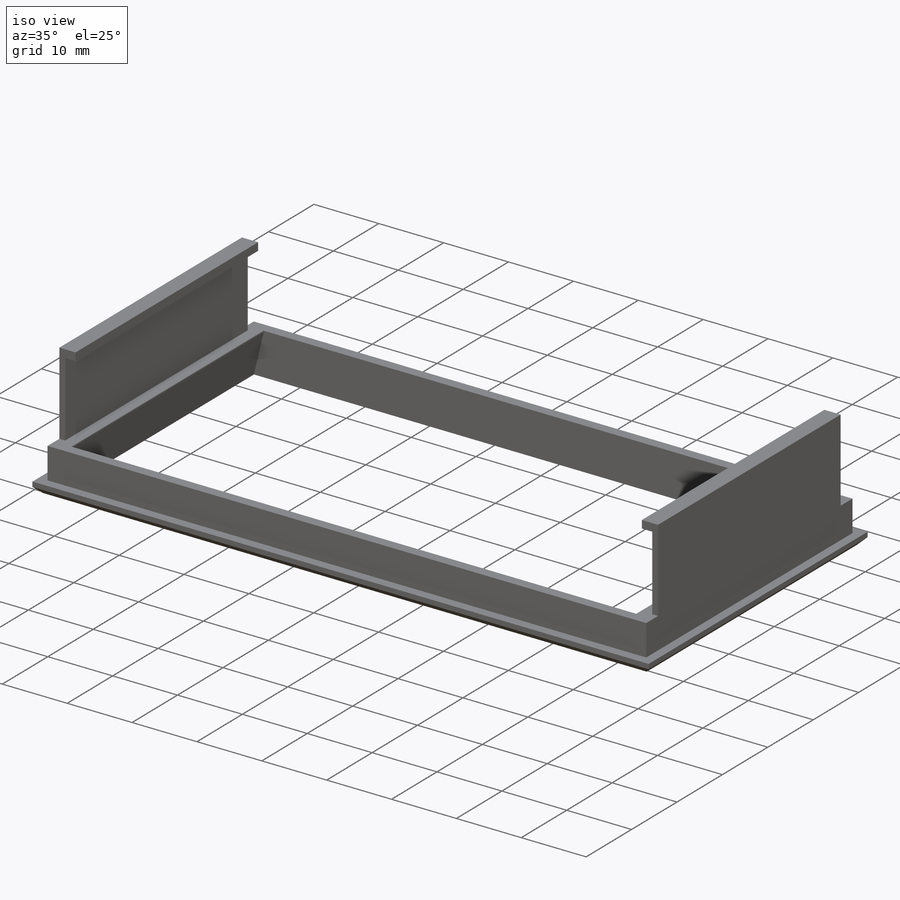
[diagram: iso view]
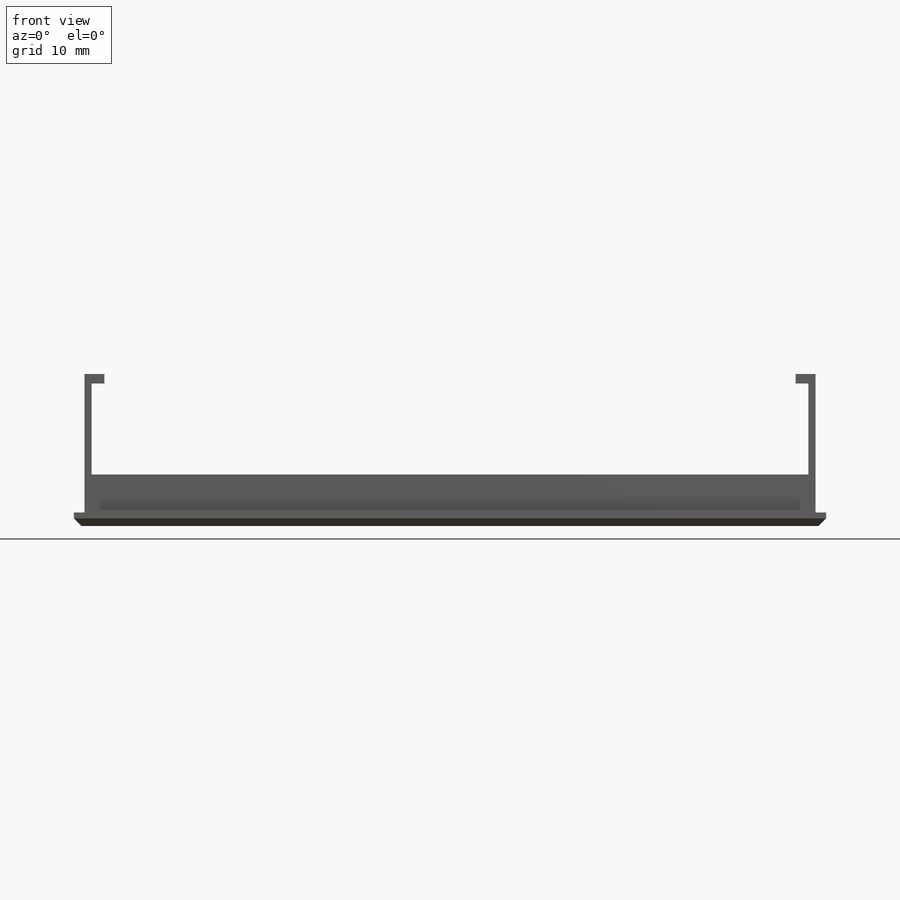
[diagram: front view]
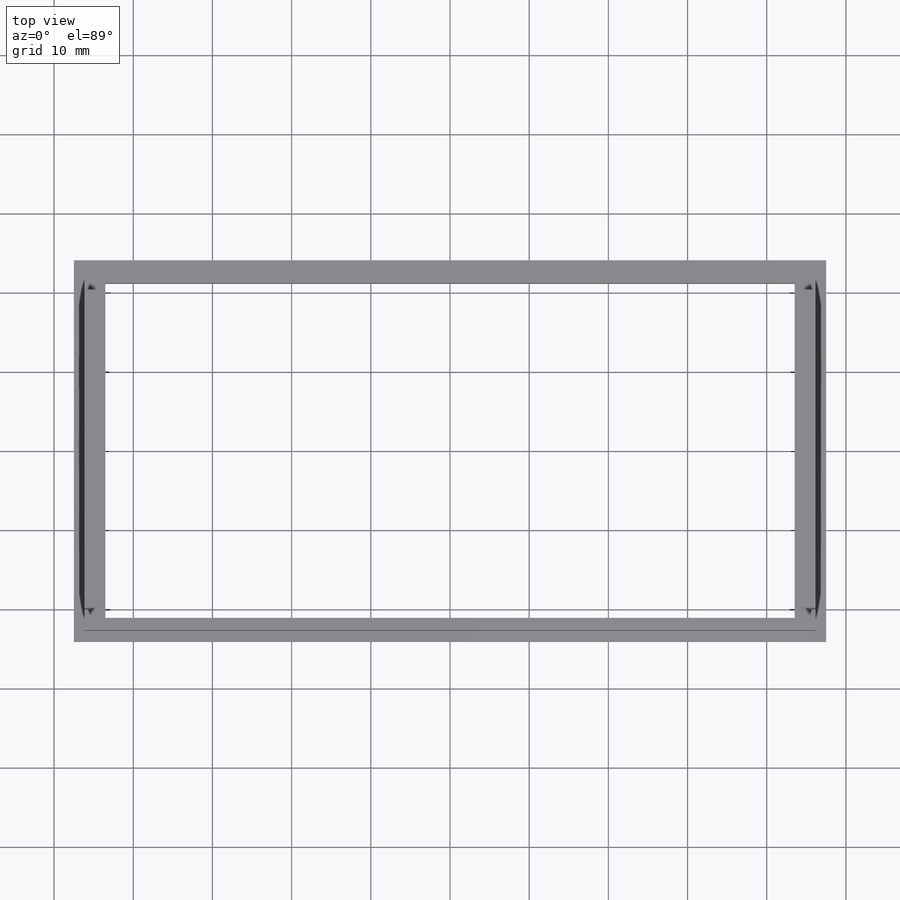
[diagram: top view]
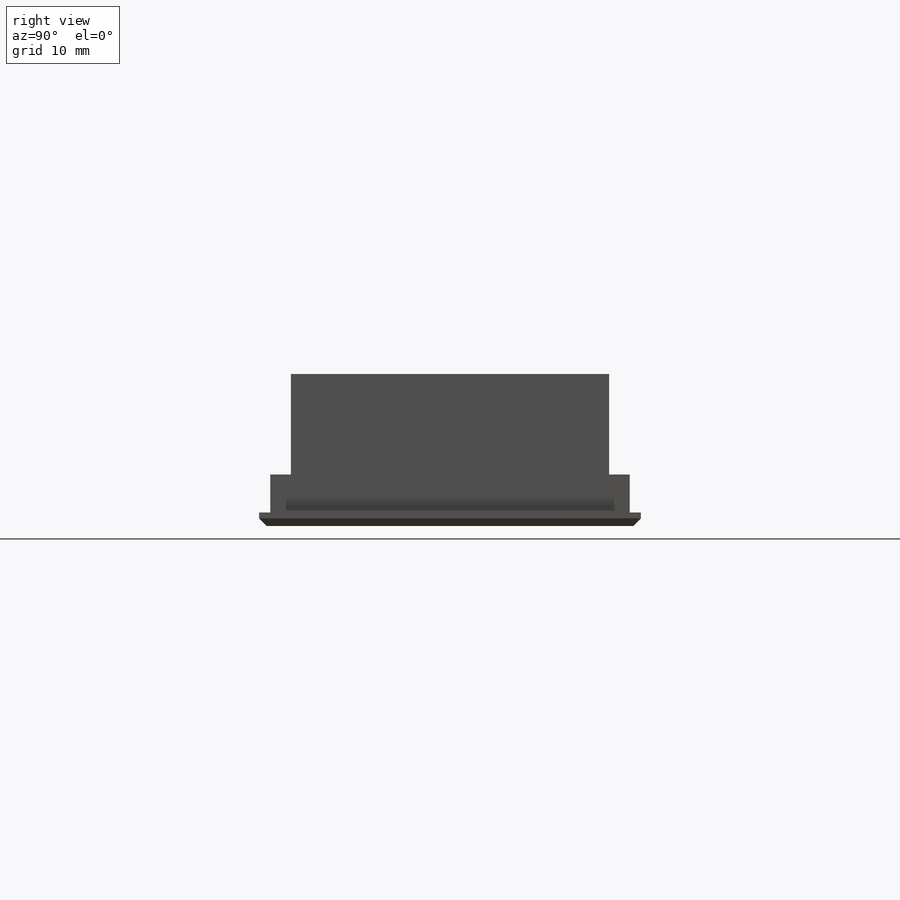
[diagram: right view]
SOLIDWORKS PART (.sldprt)
format: sldprt  version: not decoded by parser v0  size: 297,472 bytes
history: native  units: mm
features: sketch x7, chamfer x6, extrude x4, cut_extrude x3, material x1 (+11 scaffold rows collapsed)
feature tree (32):
  scaffold x11  (default folders/planes/origin — collapsed)
  material  "Material <not specified>"
  sketch  "Sketch1"  dims[c1.D1=95.0mm c1.D2=48.2mm c1.D3=24.1mm c1.D4=~26.275868mm c2.D4=90.0deg c3.D4=47.5mm]
  extrude  "Boss-Extrude2"  Depth=1.7mm
  sketch  "Sketch3"  dims[D1=45.4mm D2=92.3mm D3=46.15mm D4=22.7mm]
  extrude  "Boss-Extrude3"  Depth=4.8mm
  sketch  "Sketch4"  dims[D1=42.3mm D2=21.15mm D3=87.05mm D4=43.525mm]
  cut_extrude  "Cut-Extrude1"  [1 undecoded]
  chamfer  "Chamfer1"  Distance=0.96mm Angle=45deg
  chamfer  "Chamfer2"  Distance=0.96mm Angle=45deg
  chamfer  "Chamfer3"  Distance=0.96mm Angle=45deg
  chamfer  "Chamfer4"  Distance=0.96mm Angle=45deg
  chamfer  "Chamfer5"  Distance=6.31mm
  chamfer  "Chamfer6"  Distance=6.31mm
  sketch  "Sketch5"  dims[D1=40.2mm D2=20.1mm D3=92.3mm D4=46.15mm]
  extrude  "Boss-Extrude11"  Depth=11.5mm
  sketch  "Sketch6"  dims[c1.D1=40.2mm c1.D2=90.5mm c1.D3=45.25mm c1.D4=~46.788137mm c2.D4=90.0deg c3.D4=20.1mm]
  cut_extrude  "Cut-Extrude2"  Depth=11.5mm
  sketch  "Sketch7"  dims[D1=92.3mm D2=40.2mm D3=20.1mm]
  extrude  "Boss-Extrude12"  Depth=1.2mm
  sketch  "Sketch8"  dims[D1=40.2mm D2=20.1mm D3=43.65mm D4=43.65mm]
  cut_extrude  "Cut-Extrude3"  Depth=1.2mm
decode coverage: 19 of 20 modeling features carry decoded parameters
note: ~ marks probable driven/reference dimensions
note: 1 parameter value undecoded
note: suppression state not decoded; provenance and decode notes live in map.json
